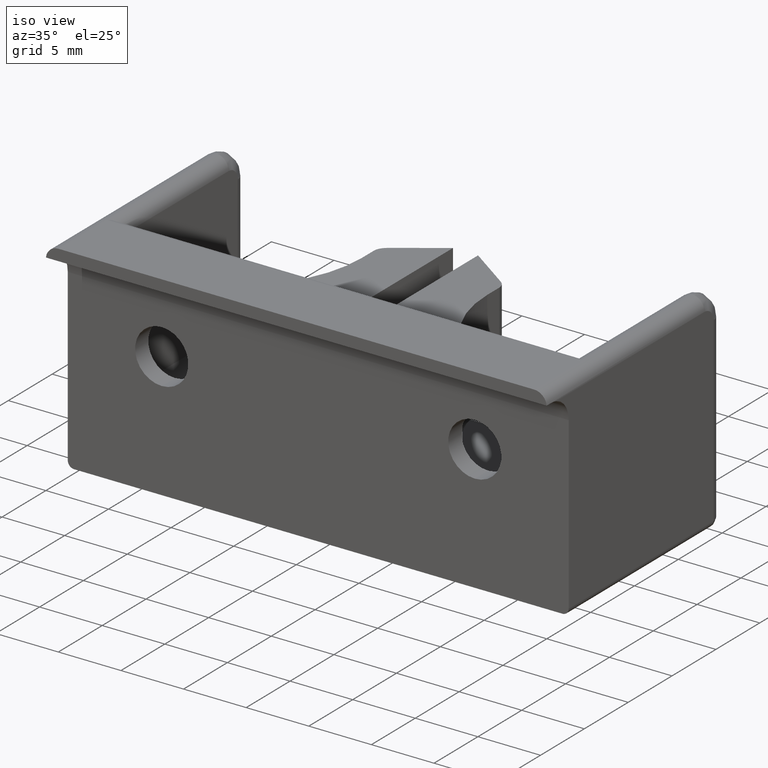
[diagram: clean part render]
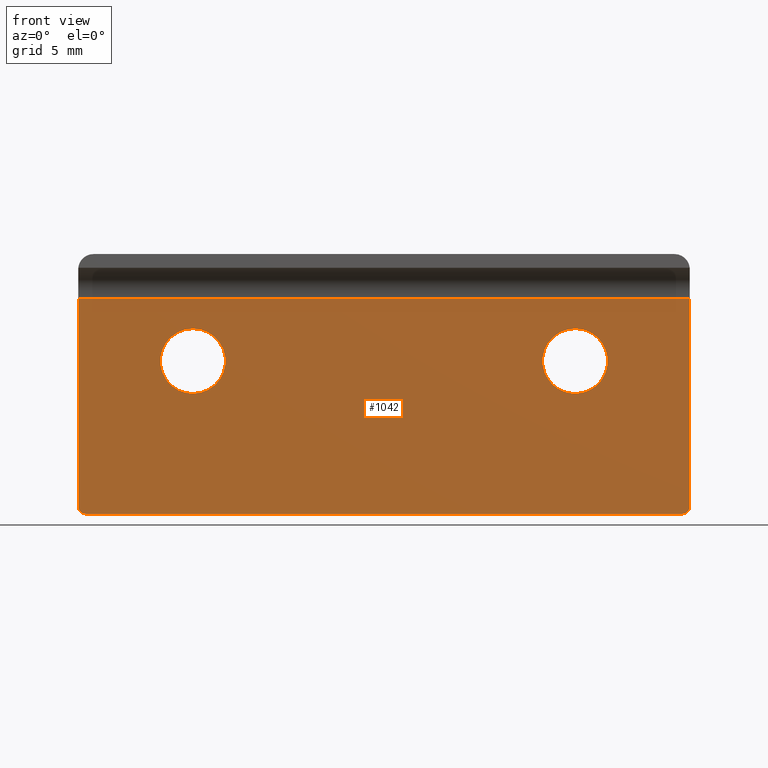
[diagram: tour spotlight — one face highlighted and labeled with its STEP entity id]
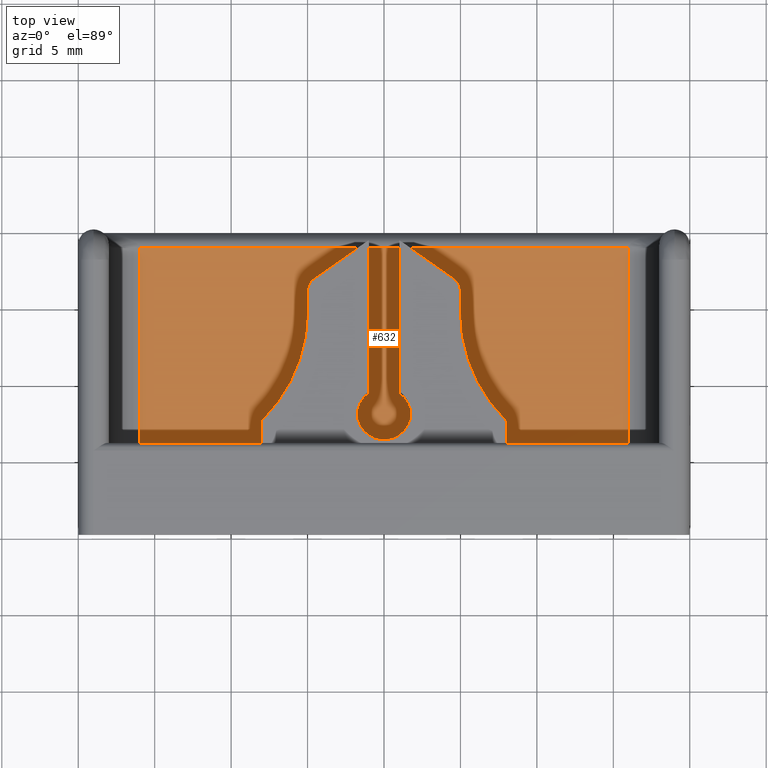
[diagram: tour spotlight — one face highlighted and labeled with its STEP entity id]
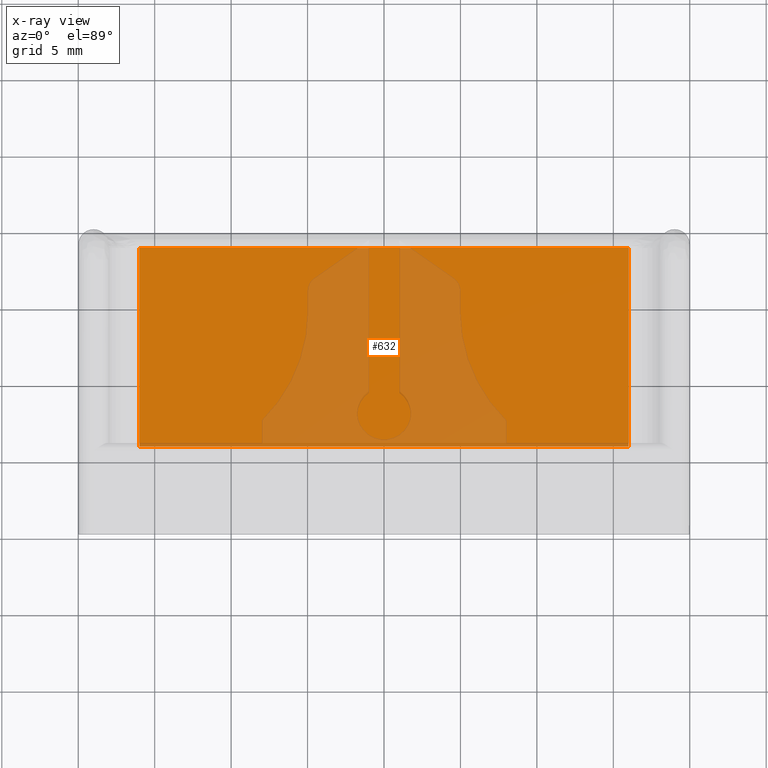
[diagram: x-ray of the same camera — body ghosted, this tour face saturated]
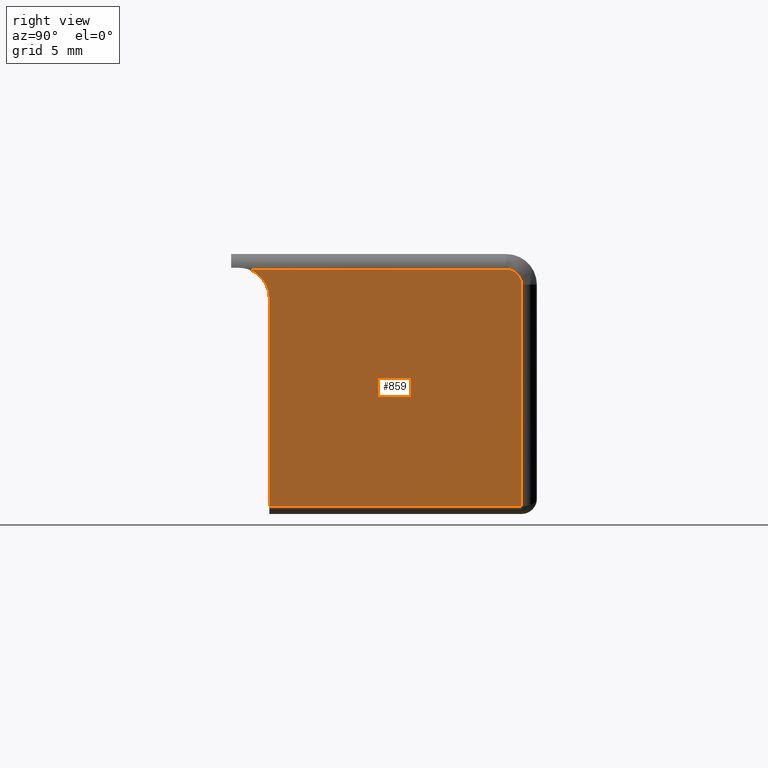
[diagram: tour spotlight — one face highlighted and labeled with its STEP entity id]
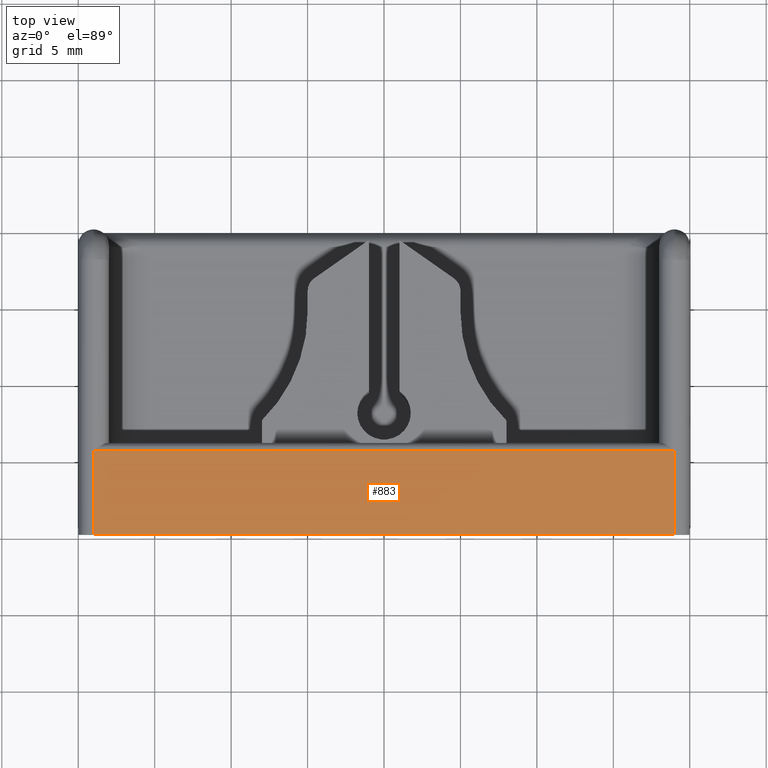
[diagram: tour spotlight — one face highlighted and labeled with its STEP entity id]
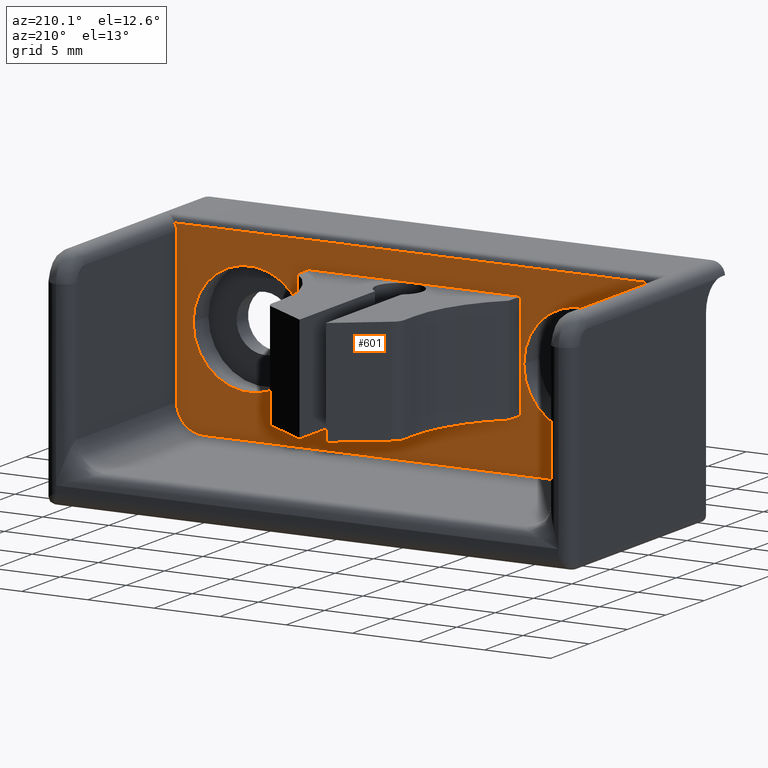
[diagram: tour spotlight — one face highlighted and labeled with its STEP entity id]
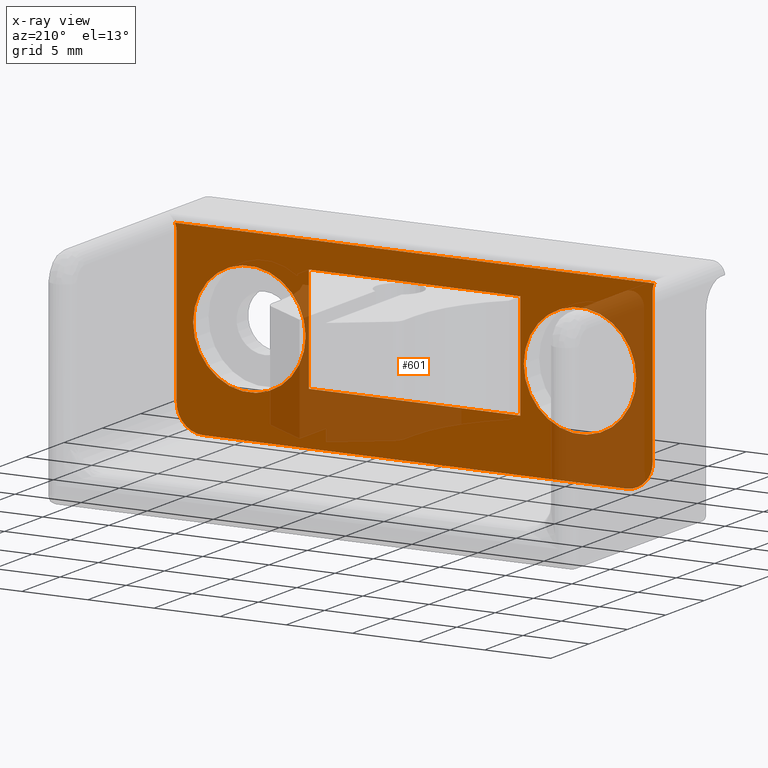
[diagram: x-ray of the same camera — body ghosted, this tour face saturated]
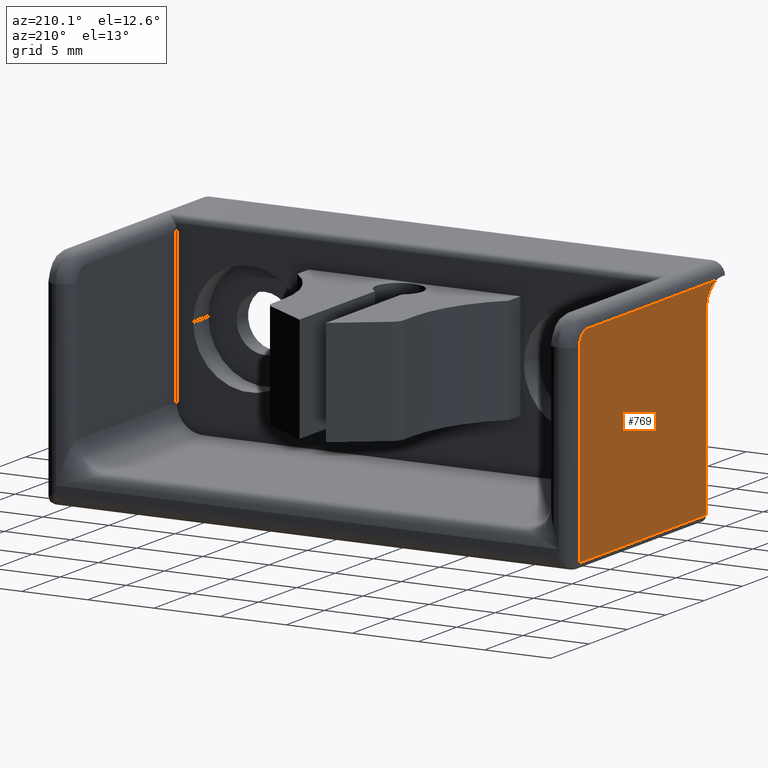
[diagram: tour spotlight — one face highlighted and labeled with its STEP entity id]
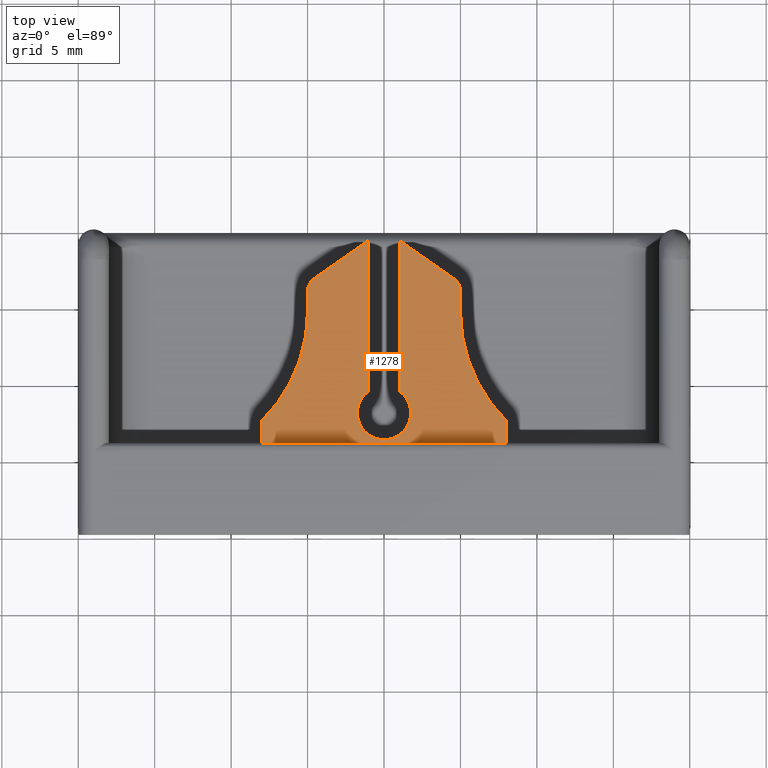
[diagram: tour spotlight — one face highlighted and labeled with its STEP entity id]
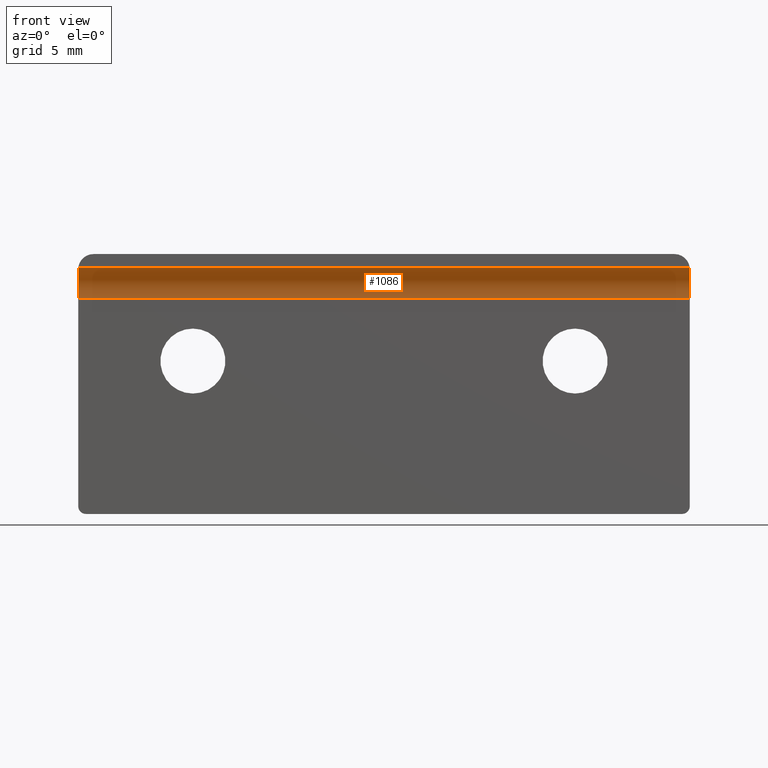
[diagram: tour spotlight — one face highlighted and labeled with its STEP entity id]
A machine part: a face-by-face anatomy tour. The part has 62 B-rep faces; the first image is the clean iso view, then the 8 largest visible faces are spotlighted one at a time (largest first), each with its STEP entity span.

Face 1 — front view, entity #1042. In plain terms, the highlighted planar face has unit normal (0, 1, 0).
Definition (entity closure, byte-faithful):
#244=CARTESIAN_POINT('',(-12.500000000000004,-7.499999999999997,12.125000000000000));
#245=VERTEX_POINT('',#244);
#252=CARTESIAN_POINT('',(-12.500000000000004,-7.499999999999997,7.875000000000003));
#253=VERTEX_POINT('',#252);
#254=CARTESIAN_POINT('',(-12.500000000000004,-7.499999999999997,10.000000000000004));
#255=DIRECTION('',(0.0,-1.0,0.0));
#256=DIRECTION('',(0.0,0.0,-1.0));
#257=AXIS2_PLACEMENT_3D('',#254,#255,#256);
#258=CIRCLE('',#257,2.124999999999999);
#259=EDGE_CURVE('',#245,#253,#258,.T.);
#286=CARTESIAN_POINT('',(12.499999999999996,-7.499999999999997,12.125000000000004));
#287=VERTEX_POINT('',#286);
#294=CARTESIAN_POINT('',(12.499999999999996,-7.499999999999997,7.875000000000000));
#295=VERTEX_POINT('',#294);
#296=CARTESIAN_POINT('',(12.499999999999996,-7.499999999999997,10.000000000000004));
#297=DIRECTION('',(0.0,-1.0,0.0));
#298=DIRECTION('',(0.0,0.0,-1.0));
#299=AXIS2_PLACEMENT_3D('',#296,#297,#298);
#300=CIRCLE('',#299,2.125000000000001);
#301=EDGE_CURVE('',#287,#295,#300,.T.);
#647=CARTESIAN_POINT('',(12.499999999999996,-7.499999999999997,10.000000000000004));
#648=DIRECTION('',(0.0,-1.0,0.0));
#649=DIRECTION('',(0.0,0.0,-1.0));
#650=AXIS2_PLACEMENT_3D('',#647,#648,#649);
#651=CIRCLE('',#650,2.125000000000001);
#652=EDGE_CURVE('',#295,#287,#651,.T.);
#671=CARTESIAN_POINT('',(-12.500000000000004,-7.499999999999997,10.000000000000004));
#672=DIRECTION('',(0.0,-1.0,0.0));
#673=DIRECTION('',(0.0,0.0,-1.0));
#674=AXIS2_PLACEMENT_3D('',#671,#672,#673);
#675=CIRCLE('',#674,2.124999999999999);
#676=EDGE_CURVE('',#253,#245,#675,.T.);
#736=CARTESIAN_POINT('',(-20.000000000000007,-7.500000000000000,0.500000000000004));
#737=VERTEX_POINT('',#736);
#744=CARTESIAN_POINT('',(-20.000000000000007,-7.499999999999997,14.102518950768868));
#745=VERTEX_POINT('',#744);
#746=CARTESIAN_POINT('',(-20.000000000000007,-7.499999999999997,14.102518950768868));
#747=DIRECTION('',(0.0,0.0,-1.0));
#748=VECTOR('',#747,13.602518950768864);
#749=LINE('',#746,#748);
#750=EDGE_CURVE('',#745,#737,#749,.T.);
#807=CARTESIAN_POINT('',(20.000000000000007,-7.499999999999997,14.102518950768868));
#808=VERTEX_POINT('',#807);
#809=CARTESIAN_POINT('',(20.000000000000007,-7.500000000000000,0.500000000000004));
#810=VERTEX_POINT('',#809);
#811=CARTESIAN_POINT('',(20.000000000000007,-7.499999999999997,14.102518950768868));
#812=DIRECTION('',(0.0,0.0,-1.0));
#813=VECTOR('',#812,13.602518950768864);
#814=LINE('',#811,#813);
#815=EDGE_CURVE('',#808,#810,#814,.T.);
#899=CARTESIAN_POINT('',(19.500000000000007,-7.500000000000000,0.0));
#900=VERTEX_POINT('',#899);
#907=CARTESIAN_POINT('',(-19.500000000000007,-7.500000000000000,0.0));
#908=VERTEX_POINT('',#907);
#909=CARTESIAN_POINT('',(19.500000000000007,-7.500000000000000,0.0));
#910=DIRECTION('',(-1.0,0.0,0.0));
#911=VECTOR('',#910,39.000000000000014);
#912=LINE('',#909,#911);
#913=EDGE_CURVE('',#900,#908,#912,.T.);
#1004=CARTESIAN_POINT('',(-22.000000000000007,-7.499999999999997,-0.705125947538443));
#1005=DIRECTION('',(0.0,1.0,0.0));
#1006=DIRECTION('',(0.0,0.0,1.0));
#1007=AXIS2_PLACEMENT_3D('',#1004,#1005,#1006);
#1008=PLANE('',#1007);
#1009=ORIENTED_EDGE('',*,*,#913,.F.);
#1010=CARTESIAN_POINT('',(19.500000000000007,-7.500000000000000,0.500000000000001));
#1011=DIRECTION('',(0.0,-1.0,0.0));
#1012=DIRECTION('',(0.0,0.0,1.0));
#1013=AXIS2_PLACEMENT_3D('',#1010,#1011,#1012);
#1014=CIRCLE('',#1013,0.500000000000000);
#1015=EDGE_CURVE('',#900,#810,#1014,.T.);
#1016=ORIENTED_EDGE('',*,*,#1015,.T.);
#1017=ORIENTED_EDGE('',*,*,#815,.F.);
#1018=CARTESIAN_POINT('',(20.000000000000007,-7.499999999999997,14.102518950768868));
#1019=DIRECTION('',(-1.0,0.0,0.0));
#1020=VECTOR('',#1019,40.000000000000014);
#1021=LINE('',#1018,#1020);
#1022=EDGE_CURVE('',#808,#745,#1021,.T.);
#1023=ORIENTED_EDGE('',*,*,#1022,.T.);
#1024=ORIENTED_EDGE('',*,*,#750,.T.);
#1025=CARTESIAN_POINT('',(-19.500000000000007,-7.500000000000000,0.500000000000001));
#1026=DIRECTION('',(0.0,-1.0,0.0));
#1027=DIRECTION('',(0.0,0.0,1.0));
#1028=AXIS2_PLACEMENT_3D('',#1025,#1026,#1027);
#1029=CIRCLE('',#1028,0.500000000000000);
#1030=EDGE_CURVE('',#737,#908,#1029,.T.);
#1031=ORIENTED_EDGE('',*,*,#1030,.T.);
#1032=EDGE_LOOP('',(#1009,#1016,#1017,#1023,#1024,#1031));
#1033=FACE_OUTER_BOUND('',#1032,.T.);
#1034=ORIENTED_EDGE('',*,*,#676,.F.);
#1035=ORIENTED_EDGE('',*,*,#259,.F.);
#1036=EDGE_LOOP('',(#1034,#1035));
#1037=FACE_BOUND('',#1036,.T.);
#1038=ORIENTED_EDGE('',*,*,#652,.F.);
#1039=ORIENTED_EDGE('',*,*,#301,.F.);
#1040=EDGE_LOOP('',(#1038,#1039));
#1041=FACE_BOUND('',#1040,.T.);
#1042=ADVANCED_FACE('',(#1033,#1037,#1041),#1008,.F.);

Face 2 — top view, entity #632. An x-ray twin of the same camera follows (body ghosted, this face saturated) — the face is partly hidden behind the body. In plain terms, the highlighted planar face has unit normal (0, 0, 1).
Definition (entity closure, byte-faithful):
#513=CARTESIAN_POINT('',(16.0,-3.999999999999997,2.500000000000001));
#514=VERTEX_POINT('',#513);
#522=CARTESIAN_POINT('',(-16.0,-3.999999999999997,2.500000000000001));
#523=VERTEX_POINT('',#522);
#524=CARTESIAN_POINT('',(-16.0,-3.999999999999997,2.500000000000001));
#525=DIRECTION('',(1.0,0.0,0.0));
#526=VECTOR('',#525,32.0);
#527=LINE('',#524,#526);
#528=EDGE_CURVE('',#523,#514,#527,.T.);
#602=CARTESIAN_POINT('',(-17.600000000000001,-4.649999999999999,2.500000000000001));
#603=DIRECTION('',(0.0,0.0,1.0));
#604=DIRECTION('',(1.0,0.0,0.0));
#605=AXIS2_PLACEMENT_3D('',#602,#603,#604);
#606=PLANE('',#605);
#607=ORIENTED_EDGE('',*,*,#528,.T.);
#608=CARTESIAN_POINT('',(16.0,8.999999999999995,2.500000000000001));
#609=VERTEX_POINT('',#608);
#610=CARTESIAN_POINT('',(16.0,-3.999999999999998,2.500000000000001));
#611=DIRECTION('',(0.0,1.0,0.0));
#612=VECTOR('',#611,12.999999999999993);
#613=LINE('',#610,#612);
#614=EDGE_CURVE('',#514,#609,#613,.T.);
#615=ORIENTED_EDGE('',*,*,#614,.T.);
#616=CARTESIAN_POINT('',(-16.0,8.999999999999989,2.500000000000001));
#617=VERTEX_POINT('',#616);
#618=CARTESIAN_POINT('',(16.0,8.999999999999989,2.500000000000001));
#619=DIRECTION('',(-1.0,0.0,0.0));
#620=VECTOR('',#619,32.0);
#621=LINE('',#618,#620);
#622=EDGE_CURVE('',#609,#617,#621,.T.);
#623=ORIENTED_EDGE('',*,*,#622,.T.);
#624=CARTESIAN_POINT('',(-16.0,8.999999999999989,2.500000000000001));
#625=DIRECTION('',(0.0,-1.0,0.0));
#626=VECTOR('',#625,12.999999999999986);
#627=LINE('',#624,#626);
#628=EDGE_CURVE('',#617,#523,#627,.T.);
#629=ORIENTED_EDGE('',*,*,#628,.T.);
#630=EDGE_LOOP('',(#607,#615,#623,#629));
#631=FACE_OUTER_BOUND('',#630,.T.);
#632=ADVANCED_FACE('',(#631),#606,.T.);

Face 3 — right view, entity #859. In plain terms, the highlighted planar face has unit normal (-1, 0, 0).
Definition (entity closure, byte-faithful):
#802=CARTESIAN_POINT('',(20.000000000000007,-9.761282327522366,-0.274999999999999));
#803=DIRECTION('',(-1.0,0.0,0.0));
#804=DIRECTION('',(0.0,0.0,1.0));
#805=AXIS2_PLACEMENT_3D('',#802,#803,#804);
#806=PLANE('',#805);
#807=CARTESIAN_POINT('',(20.000000000000007,-7.499999999999997,14.102518950768868));
#808=VERTEX_POINT('',#807);
#809=CARTESIAN_POINT('',(20.000000000000007,-7.500000000000000,0.500000000000004));
#810=VERTEX_POINT('',#809);
#811=CARTESIAN_POINT('',(20.000000000000007,-7.499999999999997,14.102518950768868));
#812=DIRECTION('',(0.0,0.0,-1.0));
#813=VECTOR('',#812,13.602518950768864);
#814=LINE('',#811,#813);
#815=EDGE_CURVE('',#808,#810,#814,.T.);
#816=ORIENTED_EDGE('',*,*,#815,.T.);
#817=CARTESIAN_POINT('',(20.000000000000007,8.999999999999996,0.500000000000001));
#818=VERTEX_POINT('',#817);
#819=CARTESIAN_POINT('',(20.000000000000007,-7.500000000000000,0.500000000000001));
#820=DIRECTION('',(0.0,1.0,0.0));
#821=VECTOR('',#820,16.499999999999996);
#822=LINE('',#819,#821);
#823=EDGE_CURVE('',#810,#818,#822,.T.);
#824=ORIENTED_EDGE('',*,*,#823,.T.);
#825=CARTESIAN_POINT('',(20.000000000000007,8.999999999999995,15.000000000000005));
#826=VERTEX_POINT('',#825);
#827=CARTESIAN_POINT('',(20.000000000000007,8.999999999999996,0.500000000000000));
#828=DIRECTION('',(0.0,0.0,1.0));
#829=VECTOR('',#828,14.500000000000005);
#830=LINE('',#827,#829);
#831=EDGE_CURVE('',#818,#826,#830,.T.);
#832=ORIENTED_EDGE('',*,*,#831,.T.);
#833=CARTESIAN_POINT('',(20.000000000000007,7.999999999999995,16.0));
#834=VERTEX_POINT('',#833);
#835=CARTESIAN_POINT('',(20.000000000000007,7.999999999999995,15.000000000000005));
#836=DIRECTION('',(1.0,0.0,0.0));
#837=DIRECTION('',(0.0,0.0,1.0));
#838=AXIS2_PLACEMENT_3D('',#835,#836,#837);
#839=CIRCLE('',#838,0.999999999999999);
#840=EDGE_CURVE('',#826,#834,#839,.T.);
#841=ORIENTED_EDGE('',*,*,#840,.T.);
#842=CARTESIAN_POINT('',(20.000000000000007,-8.867887930973682,16.0));
#843=VERTEX_POINT('',#842);
#844=CARTESIAN_POINT('',(20.000000000000007,7.999999999999995,16.0));
#845=DIRECTION('',(0.0,-1.0,0.0));
#846=VECTOR('',#845,16.867887930973676);
#847=LINE('',#844,#846);
#848=EDGE_CURVE('',#834,#843,#847,.T.);
#849=ORIENTED_EDGE('',*,*,#848,.T.);
#850=CARTESIAN_POINT('',(20.000000000000007,-9.499999999999996,14.102518950768868));
#851=DIRECTION('',(-1.0,0.0,0.0));
#852=DIRECTION('',(0.0,0.0,1.0));
#853=AXIS2_PLACEMENT_3D('',#850,#851,#852);
#854=CIRCLE('',#853,2.0);
#855=EDGE_CURVE('',#843,#808,#854,.T.);
#856=ORIENTED_EDGE('',*,*,#855,.T.);
#857=EDGE_LOOP('',(#816,#824,#832,#841,#849,#856));
#858=FACE_OUTER_BOUND('',#857,.T.);
#859=ADVANCED_FACE('',(#858),#806,.F.);

Face 4 — top view, entity #883. In plain terms, the highlighted planar face has unit normal (0, 0, 1).
Definition (entity closure, byte-faithful):
#7=CARTESIAN_POINT('',(-19.000000000000007,-4.499999999999997,17.0));
#8=VERTEX_POINT('',#7);
#9=CARTESIAN_POINT('',(-19.000000000000007,-9.999999999999996,17.0));
#10=VERTEX_POINT('',#9);
#11=CARTESIAN_POINT('',(-19.000000000000007,-4.499999999999997,17.0));
#12=DIRECTION('',(0.0,-1.0,0.0));
#13=VECTOR('',#12,5.499999999999999);
#14=LINE('',#11,#13);
#15=EDGE_CURVE('',#8,#10,#14,.T.);
#775=CARTESIAN_POINT('',(19.000000000000007,-9.999999999999995,17.0));
#776=VERTEX_POINT('',#775);
#777=CARTESIAN_POINT('',(-19.000000000000007,-9.999999999999996,17.0));
#778=DIRECTION('',(1.0,0.0,0.0));
#779=VECTOR('',#778,38.000000000000014);
#780=LINE('',#777,#779);
#781=EDGE_CURVE('',#10,#776,#780,.T.);
#860=CARTESIAN_POINT('',(-20.900000000000009,-10.274999999999995,17.0));
#861=DIRECTION('',(0.0,0.0,1.0));
#862=DIRECTION('',(1.0,0.0,0.0));
#863=AXIS2_PLACEMENT_3D('',#860,#861,#862);
#864=PLANE('',#863);
#865=CARTESIAN_POINT('',(19.000000000000007,-4.499999999999997,17.0));
#866=VERTEX_POINT('',#865);
#867=CARTESIAN_POINT('',(19.000000000000007,-9.999999999999995,17.0));
#868=DIRECTION('',(0.0,1.0,0.0));
#869=VECTOR('',#868,5.499999999999997);
#870=LINE('',#867,#869);
#871=EDGE_CURVE('',#776,#866,#870,.T.);
#872=ORIENTED_EDGE('',*,*,#871,.T.);
#873=CARTESIAN_POINT('',(19.000000000000007,-4.499999999999997,17.0));
#874=DIRECTION('',(-1.0,0.0,0.0));
#875=VECTOR('',#874,38.000000000000014);
#876=LINE('',#873,#875);
#877=EDGE_CURVE('',#866,#8,#876,.T.);
#878=ORIENTED_EDGE('',*,*,#877,.T.);
#879=ORIENTED_EDGE('',*,*,#15,.T.);
#880=ORIENTED_EDGE('',*,*,#781,.T.);
#881=EDGE_LOOP('',(#872,#878,#879,#880));
#882=FACE_OUTER_BOUND('',#881,.T.);
#883=ADVANCED_FACE('',(#882),#864,.T.);

Face 5 — auxiliary view, entity #601. An x-ray twin of the same camera follows (body ghosted, this face saturated) — the face is partly hidden behind the body. In plain terms, the highlighted planar face has unit normal (0, -1, 0).
Definition (entity closure, byte-faithful):
#160=CARTESIAN_POINT('',(16.750000000000000,-3.999999999999997,10.000000000000004));
#161=VERTEX_POINT('',#160);
#168=CARTESIAN_POINT('',(8.249999999999989,-3.999999999999997,10.000000000000004));
#169=VERTEX_POINT('',#168);
#170=CARTESIAN_POINT('',(12.499999999999996,-3.999999999999997,10.000000000000004));
#171=DIRECTION('',(0.0,1.0,0.0));
#172=DIRECTION('',(-1.0,0.0,0.0));
#173=AXIS2_PLACEMENT_3D('',#170,#171,#172);
#174=CIRCLE('',#173,4.250000000000005);
#175=EDGE_CURVE('',#161,#169,#174,.T.);
#202=CARTESIAN_POINT('',(-8.250000000000004,-3.999999999999997,10.000000000000004));
#203=VERTEX_POINT('',#202);
#210=CARTESIAN_POINT('',(-16.750000000000007,-3.999999999999997,10.000000000000004));
#211=VERTEX_POINT('',#210);
#212=CARTESIAN_POINT('',(-12.500000000000004,-3.999999999999997,10.000000000000004));
#213=DIRECTION('',(0.0,1.0,0.0));
#214=DIRECTION('',(-1.0,0.0,0.0));
#215=AXIS2_PLACEMENT_3D('',#212,#213,#214);
#216=CIRCLE('',#215,4.250000000000000);
#217=EDGE_CURVE('',#203,#211,#216,.T.);
#472=CARTESIAN_POINT('',(-19.947372055837121,-3.999999999999997,1.800000000000000));
#473=DIRECTION('',(0.0,-1.0,0.0));
#474=DIRECTION('',(1.0,0.0,0.0));
#475=AXIS2_PLACEMENT_3D('',#472,#473,#474);
#476=PLANE('',#475);
#477=CARTESIAN_POINT('',(-18.000000000000007,-3.999999999999997,15.999999999999995));
#478=VERTEX_POINT('',#477);
#479=CARTESIAN_POINT('',(-18.133974596215563,-3.999999999999997,16.500000000000000));
#480=VERTEX_POINT('',#479);
#481=CARTESIAN_POINT('',(-19.000000000000007,-3.999999999999997,16.0));
#482=DIRECTION('',(0.0,-1.0,0.0));
#483=DIRECTION('',(1.0,0.0,0.0));
#484=AXIS2_PLACEMENT_3D('',#481,#482,#483);
#485=CIRCLE('',#484,1.000000000000001);
#486=EDGE_CURVE('',#478,#480,#485,.T.);
#487=ORIENTED_EDGE('',*,*,#486,.T.);
#488=CARTESIAN_POINT('',(18.133974596215563,-3.999999999999997,16.500000000000000));
#489=VERTEX_POINT('',#488);
#490=CARTESIAN_POINT('',(-18.133974596215559,-3.999999999999997,16.500000000000000));
#491=DIRECTION('',(1.0,0.0,0.0));
#492=VECTOR('',#491,36.267949192431111);
#493=LINE('',#490,#492);
#494=EDGE_CURVE('',#480,#489,#493,.T.);
#495=ORIENTED_EDGE('',*,*,#494,.T.);
#496=CARTESIAN_POINT('',(18.000000000000007,-3.999999999999997,15.999999999999995));
#497=VERTEX_POINT('',#496);
#498=CARTESIAN_POINT('',(19.000000000000007,-3.999999999999997,16.0));
#499=DIRECTION('',(0.0,-1.0,0.0));
#500=DIRECTION('',(1.0,0.0,0.0));
#501=AXIS2_PLACEMENT_3D('',#498,#499,#500);
#502=CIRCLE('',#501,1.000000000000001);
#503=EDGE_CURVE('',#489,#497,#502,.T.);
#504=ORIENTED_EDGE('',*,*,#503,.T.);
#505=CARTESIAN_POINT('',(18.000000000000007,-3.999999999999997,4.500000000000000));
#506=VERTEX_POINT('',#505);
#507=CARTESIAN_POINT('',(18.000000000000007,-3.999999999999997,4.500000000000000));
#508=DIRECTION('',(0.0,0.0,1.0));
#509=VECTOR('',#508,11.499999999999995);
#510=LINE('',#507,#509);
#511=EDGE_CURVE('',#506,#497,#510,.T.);
#512=ORIENTED_EDGE('',*,*,#511,.F.);
#513=CARTESIAN_POINT('',(16.0,-3.999999999999997,2.500000000000001));
#514=VERTEX_POINT('',#513);
#515=CARTESIAN_POINT('',(16.0,-3.999999999999997,4.500000000000002));
#516=DIRECTION('',(0.0,1.0,0.0));
#517=DIRECTION('',(1.0,0.0,0.0));
#518=AXIS2_PLACEMENT_3D('',#515,#516,#517);
#519=CIRCLE('',#518,2.000000000000001);
#520=EDGE_CURVE('',#506,#514,#519,.T.);
#521=ORIENTED_EDGE('',*,*,#520,.T.);
#522=CARTESIAN_POINT('',(-16.0,-3.999999999999997,2.500000000000001));
#523=VERTEX_POINT('',#522);
#524=CARTESIAN_POINT('',(-16.0,-3.999999999999997,2.500000000000001));
#525=DIRECTION('',(1.0,0.0,0.0));
#526=VECTOR('',#525,32.0);
#527=LINE('',#524,#526);
#528=EDGE_CURVE('',#523,#514,#527,.T.);
#529=ORIENTED_EDGE('',*,*,#528,.F.);
#530=CARTESIAN_POINT('',(-18.000000000000007,-3.999999999999997,4.500000000000000));
#531=VERTEX_POINT('',#530);
#532=CARTESIAN_POINT('',(-16.0,-3.999999999999997,4.500000000000002));
#533=DIRECTION('',(0.0,1.0,0.0));
#534=DIRECTION('',(1.0,0.0,0.0));
#535=AXIS2_PLACEMENT_3D('',#532,#533,#534);
#536=CIRCLE('',#535,2.0);
#537=EDGE_CURVE('',#523,#531,#536,.T.);
#538=ORIENTED_EDGE('',*,*,#537,.T.);
#539=CARTESIAN_POINT('',(-18.000000000000007,-3.999999999999997,4.500000000000000));
#540=DIRECTION('',(0.0,0.0,1.0));
#541=VECTOR('',#540,11.499999999999995);
#542=LINE('',#539,#541);
#543=EDGE_CURVE('',#531,#478,#542,.T.);
#544=ORIENTED_EDGE('',*,*,#543,.T.);
#545=EDGE_LOOP('',(#487,#495,#504,#512,#521,#529,#538,#544));
#546=FACE_OUTER_BOUND('',#545,.T.);
#547=CARTESIAN_POINT('',(-12.500000000000004,-3.999999999999997,10.000000000000004));
#548=DIRECTION('',(0.0,1.0,0.0));
#549=DIRECTION('',(-1.0,0.0,0.0));
#550=AXIS2_PLACEMENT_3D('',#547,#548,#549);
#551=CIRCLE('',#550,4.250000000000000);
#552=EDGE_CURVE('',#211,#203,#551,.T.);
#553=ORIENTED_EDGE('',*,*,#552,.F.);
#554=ORIENTED_EDGE('',*,*,#217,.F.);
#555=EDGE_LOOP('',(#553,#554));
#556=FACE_BOUND('',#555,.T.);
#557=CARTESIAN_POINT('',(12.499999999999996,-3.999999999999997,10.000000000000004));
#558=DIRECTION('',(0.0,1.0,0.0));
#559=DIRECTION('',(-1.0,0.0,0.0));
#560=AXIS2_PLACEMENT_3D('',#557,#558,#559);
#561=CIRCLE('',#560,4.250000000000005);
#562=EDGE_CURVE('',#169,#161,#561,.T.);
#563=ORIENTED_EDGE('',*,*,#562,.F.);
#564=ORIENTED_EDGE('',*,*,#175,.F.);
#565=EDGE_LOOP('',(#563,#564));
#566=FACE_BOUND('',#565,.T.);
#567=CARTESIAN_POINT('',(-8.000000000000004,-3.999999999999997,14.500000000000000));
#568=VERTEX_POINT('',#567);
#569=CARTESIAN_POINT('',(-8.000000000000004,-3.999999999999997,6.500000000000003));
#570=VERTEX_POINT('',#569);
#571=CARTESIAN_POINT('',(-8.000000000000004,-3.999999999999997,14.500000000000000));
#572=DIRECTION('',(0.0,0.0,-1.0));
#573=VECTOR('',#572,7.999999999999996);
#574=LINE('',#571,#573);
#575=EDGE_CURVE('',#568,#570,#574,.T.);
#576=ORIENTED_EDGE('',*,*,#575,.T.);
#577=CARTESIAN_POINT('',(8.000000000000004,-3.999999999999997,6.500000000000003));
#578=VERTEX_POINT('',#577);
#579=CARTESIAN_POINT('',(-8.000000000000004,-3.999999999999997,6.500000000000003));
#580=DIRECTION('',(1.0,0.0,0.0));
#581=VECTOR('',#580,16.000000000000007);
#582=LINE('',#579,#581);
#583=EDGE_CURVE('',#570,#578,#582,.T.);
#584=ORIENTED_EDGE('',*,*,#583,.T.);
#585=CARTESIAN_POINT('',(8.000000000000004,-3.999999999999997,14.500000000000000));
#586=VERTEX_POINT('',#585);
#587=CARTESIAN_POINT('',(8.000000000000004,-3.999999999999997,14.500000000000000));
#588=DIRECTION('',(0.0,0.0,-1.0));
#589=VECTOR('',#588,7.999999999999996);
#590=LINE('',#587,#589);
#591=EDGE_CURVE('',#586,#578,#590,.T.);
#592=ORIENTED_EDGE('',*,*,#591,.F.);
#593=CARTESIAN_POINT('',(-8.000000000000004,-3.999999999999997,14.500000000000000));
#594=DIRECTION('',(1.0,0.0,0.0));
#595=VECTOR('',#594,16.000000000000007);
#596=LINE('',#593,#595);
#597=EDGE_CURVE('',#568,#586,#596,.T.);
#598=ORIENTED_EDGE('',*,*,#597,.F.);
#599=EDGE_LOOP('',(#576,#584,#592,#598));
#600=FACE_BOUND('',#599,.T.);
#601=ADVANCED_FACE('',(#546,#556,#566,#600),#476,.F.);

Face 6 — auxiliary view, entity #769. In plain terms, the highlighted planar face has unit normal (1, 0, 0).
Definition (entity closure, byte-faithful):
#25=CARTESIAN_POINT('',(-20.000000000000007,7.999999999999989,16.0));
#26=VERTEX_POINT('',#25);
#34=CARTESIAN_POINT('',(-20.000000000000007,-8.867887930973682,16.0));
#35=VERTEX_POINT('',#34);
#36=CARTESIAN_POINT('',(-20.000000000000007,-8.867887930973680,16.0));
#37=DIRECTION('',(0.0,1.0,0.0));
#38=VECTOR('',#37,16.867887930973669);
#39=LINE('',#36,#38);
#40=EDGE_CURVE('',#35,#26,#39,.T.);
#721=CARTESIAN_POINT('',(-20.000000000000007,-9.761282327522366,16.775000000000002));
#722=DIRECTION('',(1.0,0.0,0.0));
#723=DIRECTION('',(0.0,0.0,-1.0));
#724=AXIS2_PLACEMENT_3D('',#721,#722,#723);
#725=PLANE('',#724);
#726=CARTESIAN_POINT('',(-20.000000000000007,8.999999999999989,15.000000000000005));
#727=VERTEX_POINT('',#726);
#728=CARTESIAN_POINT('',(-20.000000000000007,8.999999999999989,0.500000000000001));
#729=VERTEX_POINT('',#728);
#730=CARTESIAN_POINT('',(-20.000000000000007,8.999999999999989,15.000000000000005));
#731=DIRECTION('',(0.0,0.0,-1.0));
#732=VECTOR('',#731,14.500000000000005);
#733=LINE('',#730,#732);
#734=EDGE_CURVE('',#727,#729,#733,.T.);
#735=ORIENTED_EDGE('',*,*,#734,.T.);
#736=CARTESIAN_POINT('',(-20.000000000000007,-7.500000000000000,0.500000000000004));
#737=VERTEX_POINT('',#736);
#738=CARTESIAN_POINT('',(-20.000000000000007,8.999999999999989,0.500000000000001));
#739=DIRECTION('',(0.0,-1.0,0.0));
#740=VECTOR('',#739,16.499999999999989);
#741=LINE('',#738,#740);
#742=EDGE_CURVE('',#729,#737,#741,.T.);
#743=ORIENTED_EDGE('',*,*,#742,.T.);
#744=CARTESIAN_POINT('',(-20.000000000000007,-7.499999999999997,14.102518950768868));
#745=VERTEX_POINT('',#744);
#746=CARTESIAN_POINT('',(-20.000000000000007,-7.499999999999997,14.102518950768868));
#747=DIRECTION('',(0.0,0.0,-1.0));
#748=VECTOR('',#747,13.602518950768864);
#749=LINE('',#746,#748);
#750=EDGE_CURVE('',#745,#737,#749,.T.);
#751=ORIENTED_EDGE('',*,*,#750,.F.);
#752=CARTESIAN_POINT('',(-20.000000000000007,-9.499999999999996,14.102518950768868));
#753=DIRECTION('',(1.0,0.0,0.0));
#754=DIRECTION('',(0.0,0.0,-1.0));
#755=AXIS2_PLACEMENT_3D('',#752,#753,#754);
#756=CIRCLE('',#755,2.0);
#757=EDGE_CURVE('',#745,#35,#756,.T.);
#758=ORIENTED_EDGE('',*,*,#757,.T.);
#759=ORIENTED_EDGE('',*,*,#40,.T.);
#760=CARTESIAN_POINT('',(-20.000000000000007,7.999999999999989,15.000000000000005));
#761=DIRECTION('',(-1.0,0.0,0.0));
#762=DIRECTION('',(0.0,0.0,-1.0));
#763=AXIS2_PLACEMENT_3D('',#760,#761,#762);
#764=CIRCLE('',#763,0.999999999999999);
#765=EDGE_CURVE('',#26,#727,#764,.T.);
#766=ORIENTED_EDGE('',*,*,#765,.T.);
#767=EDGE_LOOP('',(#735,#743,#751,#758,#759,#766));
#768=FACE_OUTER_BOUND('',#767,.T.);
#769=ADVANCED_FACE('',(#768),#725,.F.);

Face 7 — top view, entity #1278. In plain terms, the highlighted planar face has unit normal (0, 0, 1).
Definition (entity closure, byte-faithful):
#85=CARTESIAN_POINT('',(-1.750000000000002,-1.999999999999996,14.500000000000000));
#86=VERTEX_POINT('',#85);
#93=CARTESIAN_POINT('',(1.749999999999998,-1.999999999999996,14.500000000000000));
#94=VERTEX_POINT('',#93);
#95=CARTESIAN_POINT('',(-1.734723E-015,-1.999999999999996,14.500000000000000));
#96=DIRECTION('',(0.0,0.0,1.0));
#97=DIRECTION('',(1.0,0.0,0.0));
#98=AXIS2_PLACEMENT_3D('',#95,#96,#97);
#99=CIRCLE('',#98,1.750000000000000);
#100=EDGE_CURVE('',#86,#94,#99,.T.);
#126=CARTESIAN_POINT('',(0.999999999999998,-0.563859338365486,14.500000000000000));
#127=VERTEX_POINT('',#126);
#128=CARTESIAN_POINT('',(-1.734723E-015,-1.999999999999996,14.500000000000000));
#129=DIRECTION('',(0.0,0.0,1.0));
#130=DIRECTION('',(1.0,0.0,0.0));
#131=AXIS2_PLACEMENT_3D('',#128,#129,#130);
#132=CIRCLE('',#131,1.750000000000000);
#133=EDGE_CURVE('',#94,#127,#132,.T.);
#327=CARTESIAN_POINT('',(5.000000000000002,5.979344438426631,14.500000000000000));
#328=VERTEX_POINT('',#327);
#335=CARTESIAN_POINT('',(5.000000000000002,4.641428428542850,14.500000000000000));
#336=VERTEX_POINT('',#335);
#337=CARTESIAN_POINT('',(5.000000000000002,4.641428428542850,14.500000000000000));
#338=DIRECTION('',(0.0,1.0,0.0));
#339=VECTOR('',#338,1.337916009883781);
#340=LINE('',#337,#339);
#341=EDGE_CURVE('',#336,#328,#340,.T.);
#357=CARTESIAN_POINT('',(-5.000000000000002,5.979344438426631,14.500000000000000));
#358=VERTEX_POINT('',#357);
#359=CARTESIAN_POINT('',(-5.000000000000002,4.641428428542850,14.500000000000000));
#360=VERTEX_POINT('',#359);
#361=CARTESIAN_POINT('',(-5.000000000000002,5.979344438426631,14.500000000000000));
#362=DIRECTION('',(0.0,-1.0,0.0));
#363=VECTOR('',#362,1.337916009883781);
#364=LINE('',#361,#363);
#365=EDGE_CURVE('',#358,#360,#364,.T.);
#407=CARTESIAN_POINT('',(-4.573462344363330,6.798576358945671,14.500000000000000));
#408=VERTEX_POINT('',#407);
#415=CARTESIAN_POINT('',(-1.000000000000000,9.299999999999997,14.500000000000000));
#416=VERTEX_POINT('',#415);
#417=CARTESIAN_POINT('',(-0.999999999999999,9.299999999999997,14.500000000000000));
#418=DIRECTION('',(-0.819231920519041,-0.573462344363327,0.0));
#419=VECTOR('',#418,4.361966684720112);
#420=LINE('',#417,#419);
#421=EDGE_CURVE('',#416,#408,#420,.T.);
#437=CARTESIAN_POINT('',(4.573462344363330,6.798576358945671,14.500000000000000));
#438=VERTEX_POINT('',#437);
#439=CARTESIAN_POINT('',(0.999999999999999,9.299999999999997,14.500000000000000));
#440=VERTEX_POINT('',#439);
#441=CARTESIAN_POINT('',(4.573462344363332,6.798576358945671,14.500000000000000));
#442=DIRECTION('',(-0.819231920519041,0.573462344363327,0.0));
#443=VECTOR('',#442,4.361966684720112);
#444=LINE('',#441,#443);
#445=EDGE_CURVE('',#438,#440,#444,.T.);
#567=CARTESIAN_POINT('',(-8.000000000000004,-3.999999999999997,14.500000000000000));
#568=VERTEX_POINT('',#567);
#585=CARTESIAN_POINT('',(8.000000000000004,-3.999999999999997,14.500000000000000));
#586=VERTEX_POINT('',#585);
#593=CARTESIAN_POINT('',(-8.000000000000004,-3.999999999999997,14.500000000000000));
#594=DIRECTION('',(1.0,0.0,0.0));
#595=VECTOR('',#594,16.000000000000007);
#596=LINE('',#593,#595);
#597=EDGE_CURVE('',#568,#586,#596,.T.);
#1156=CARTESIAN_POINT('',(-8.000000000000004,-2.499999999999997,14.500000000000000));
#1157=VERTEX_POINT('',#1156);
#1173=CARTESIAN_POINT('',(-8.000000000000004,-2.499999999999997,14.500000000000000));
#1174=DIRECTION('',(0.0,-1.0,0.0));
#1175=VECTOR('',#1174,1.500000000000000);
#1176=LINE('',#1173,#1175);
#1177=EDGE_CURVE('',#1157,#568,#1176,.T.);
#1196=CARTESIAN_POINT('',(8.000000000000004,-2.499999999999997,14.500000000000000));
#1197=VERTEX_POINT('',#1196);
#1204=CARTESIAN_POINT('',(8.000000000000004,-3.999999999999997,14.500000000000000));
#1205=DIRECTION('',(0.0,1.0,0.0));
#1206=VECTOR('',#1205,1.500000000000000);
#1207=LINE('',#1204,#1206);
#1208=EDGE_CURVE('',#586,#1197,#1207,.T.);
#1213=CARTESIAN_POINT('',(-8.800000000000004,-4.664999999999997,14.500000000000000));
#1214=DIRECTION('',(0.0,0.0,1.0));
#1215=DIRECTION('',(1.0,0.0,0.0));
#1216=AXIS2_PLACEMENT_3D('',#1213,#1214,#1215);
#1217=PLANE('',#1216);
#1218=ORIENTED_EDGE('',*,*,#341,.T.);
#1219=CARTESIAN_POINT('',(4.000000000000002,5.979344438426631,14.500000000000000));
#1220=DIRECTION('',(0.0,0.0,1.0));
#1221=DIRECTION('',(1.0,0.0,0.0));
#1222=AXIS2_PLACEMENT_3D('',#1219,#1220,#1221);
#1223=CIRCLE('',#1222,1.0);
#1224=EDGE_CURVE('',#328,#438,#1223,.T.);
#1225=ORIENTED_EDGE('',*,*,#1224,.T.);
#1226=ORIENTED_EDGE('',*,*,#445,.T.);
#1227=CARTESIAN_POINT('',(0.999999999999998,-0.563859338365486,14.500000000000000));
#1228=DIRECTION('',(0.0,1.0,0.0));
#1229=VECTOR('',#1228,9.863859338365483);
#1230=LINE('',#1227,#1229);
#1231=EDGE_CURVE('',#127,#440,#1230,.T.);
#1232=ORIENTED_EDGE('',*,*,#1231,.F.);
#1233=ORIENTED_EDGE('',*,*,#133,.F.);
#1234=ORIENTED_EDGE('',*,*,#100,.F.);
#1235=CARTESIAN_POINT('',(-0.999999999999998,-0.563859338365486,14.500000000000000));
#1236=VERTEX_POINT('',#1235);
#1237=CARTESIAN_POINT('',(-1.734723E-015,-1.999999999999996,14.500000000000000));
#1238=DIRECTION('',(0.0,0.0,1.0));
#1239=DIRECTION('',(1.0,0.0,0.0));
#1240=AXIS2_PLACEMENT_3D('',#1237,#1238,#1239);
#1241=CIRCLE('',#1240,1.750000000000000);
#1242=EDGE_CURVE('',#1236,#86,#1241,.T.);
#1243=ORIENTED_EDGE('',*,*,#1242,.F.);
#1244=CARTESIAN_POINT('',(-1.000000000000000,9.299999999999997,14.500000000000000));
#1245=DIRECTION('',(0.0,-1.0,0.0));
#1246=VECTOR('',#1245,9.863859338365483);
#1247=LINE('',#1244,#1246);
#1248=EDGE_CURVE('',#416,#1236,#1247,.T.);
#1249=ORIENTED_EDGE('',*,*,#1248,.F.);
#1250=ORIENTED_EDGE('',*,*,#421,.T.);
#1251=CARTESIAN_POINT('',(-4.000000000000002,5.979344438426631,14.500000000000000));
#1252=DIRECTION('',(0.0,0.0,1.0));
#1253=DIRECTION('',(1.0,0.0,0.0));
#1254=AXIS2_PLACEMENT_3D('',#1251,#1252,#1253);
#1255=CIRCLE('',#1254,1.0);
#1256=EDGE_CURVE('',#408,#358,#1255,.T.);
#1257=ORIENTED_EDGE('',*,*,#1256,.T.);
#1258=ORIENTED_EDGE('',*,*,#365,.T.);
#1259=CARTESIAN_POINT('',(-15.000000000000005,4.641428428542850,14.500000000000000));
#1260=DIRECTION('',(0.0,0.0,-1.0));
#1261=DIRECTION('',(1.0,0.0,0.0));
#1262=AXIS2_PLACEMENT_3D('',#1259,#1260,#1261);
#1263=CIRCLE('',#1262,10.0);
#1264=EDGE_CURVE('',#360,#1157,#1263,.T.);
#1265=ORIENTED_EDGE('',*,*,#1264,.T.);
#1266=ORIENTED_EDGE('',*,*,#1177,.T.);
#1267=ORIENTED_EDGE('',*,*,#597,.T.);
#1268=ORIENTED_EDGE('',*,*,#1208,.T.);
#1269=CARTESIAN_POINT('',(15.000000000000005,4.641428428542850,14.500000000000000));
#1270=DIRECTION('',(0.0,0.0,-1.0));
#1271=DIRECTION('',(1.0,0.0,0.0));
#1272=AXIS2_PLACEMENT_3D('',#1269,#1270,#1271);
#1273=CIRCLE('',#1272,9.999999999999996);
#1274=EDGE_CURVE('',#1197,#336,#1273,.T.);
#1275=ORIENTED_EDGE('',*,*,#1274,.T.);
#1276=EDGE_LOOP('',(#1218,#1225,#1226,#1232,#1233,#1234,#1243,#1249,#1250,#1257,#1258,#1265,#1266,#1267,#1268,#1275));
#1277=FACE_OUTER_BOUND('',#1276,.T.);
#1278=ADVANCED_FACE('',(#1277),#1217,.T.);

Face 8 — front view, entity #1086. In plain terms, the highlighted cylindrical surface (edge-blend (fillet) strip) has radius 2 mm, axis along (1, 0, 0).
Definition (entity closure, byte-faithful):
#34=CARTESIAN_POINT('',(-20.000000000000007,-8.867887930973682,16.0));
#35=VERTEX_POINT('',#34);
#42=CARTESIAN_POINT('',(-19.994731051457251,-9.499999999999996,16.102518950768868));
#43=VERTEX_POINT('',#42);
#44=CARTESIAN_POINT('',(-19.994731051457251,-9.499999999999996,16.102518950768868));
#45=CARTESIAN_POINT('',(-19.994731051457251,-9.283738999781086,16.102518950768868));
#46=CARTESIAN_POINT('',(-20.000000000000007,-9.073063505775256,16.068350594149038));
#47=CARTESIAN_POINT('',(-20.000000000000007,-8.867887930973682,16.0));
#48=B_SPLINE_CURVE_WITH_KNOTS('',3,(#44,#45,#46,#47),.UNSPECIFIED.,.F.,.U.,(4,4),(0.0,0.000640393289233),.UNSPECIFIED.);
#49=EDGE_CURVE('',#43,#35,#48,.T.);
#744=CARTESIAN_POINT('',(-20.000000000000007,-7.499999999999997,14.102518950768868));
#745=VERTEX_POINT('',#744);
#752=CARTESIAN_POINT('',(-20.000000000000007,-9.499999999999996,14.102518950768868));
#753=DIRECTION('',(1.0,0.0,0.0));
#754=DIRECTION('',(0.0,0.0,-1.0));
#755=AXIS2_PLACEMENT_3D('',#752,#753,#754);
#756=CIRCLE('',#755,2.0);
#757=EDGE_CURVE('',#745,#35,#756,.T.);
#807=CARTESIAN_POINT('',(20.000000000000007,-7.499999999999997,14.102518950768868));
#808=VERTEX_POINT('',#807);
#842=CARTESIAN_POINT('',(20.000000000000007,-8.867887930973682,16.0));
#843=VERTEX_POINT('',#842);
#850=CARTESIAN_POINT('',(20.000000000000007,-9.499999999999996,14.102518950768868));
#851=DIRECTION('',(-1.0,0.0,0.0));
#852=DIRECTION('',(0.0,0.0,1.0));
#853=AXIS2_PLACEMENT_3D('',#850,#851,#852);
#854=CIRCLE('',#853,2.0);
#855=EDGE_CURVE('',#843,#808,#854,.T.);
#1018=CARTESIAN_POINT('',(20.000000000000007,-7.499999999999997,14.102518950768868));
#1019=DIRECTION('',(-1.0,0.0,0.0));
#1020=VECTOR('',#1019,40.000000000000014);
#1021=LINE('',#1018,#1020);
#1022=EDGE_CURVE('',#808,#745,#1021,.T.);
#1050=CARTESIAN_POINT('',(19.994731051457251,-9.499999999999996,16.102518950768868));
#1051=VERTEX_POINT('',#1050);
#1052=CARTESIAN_POINT('',(-19.994731051457251,-9.499999999999996,16.102518950768868));
#1053=DIRECTION('',(1.0,0.0,0.0));
#1054=VECTOR('',#1053,39.989462102914501);
#1055=LINE('',#1052,#1054);
#1056=EDGE_CURVE('',#43,#1051,#1055,.T.);
#1067=CARTESIAN_POINT('',(-20.000000019786953,-9.499999999999996,14.102518950768868));
#1068=DIRECTION('',(1.0,0.0,0.0));
#1069=DIRECTION('',(0.0,0.0,-1.0));
#1070=AXIS2_PLACEMENT_3D('',#1067,#1068,#1069);
#1071=CYLINDRICAL_SURFACE('',#1070,2.0);
#1072=ORIENTED_EDGE('',*,*,#1056,.F.);
#1073=ORIENTED_EDGE('',*,*,#49,.T.);
#1074=ORIENTED_EDGE('',*,*,#757,.F.);
#1075=ORIENTED_EDGE('',*,*,#1022,.F.);
#1076=ORIENTED_EDGE('',*,*,#855,.F.);
#1077=CARTESIAN_POINT('',(20.000000000000007,-8.867887930973682,16.0));
#1078=CARTESIAN_POINT('',(20.000000000000007,-9.073063505775256,16.068350594149038));
#1079=CARTESIAN_POINT('',(19.994731051457251,-9.283738999781086,16.102518950768868));
#1080=CARTESIAN_POINT('',(19.994731051457251,-9.499999999999996,16.102518950768868));
#1081=B_SPLINE_CURVE_WITH_KNOTS('',3,(#1077,#1078,#1079,#1080),.UNSPECIFIED.,.F.,.U.,(4,4),(0.0,0.000640393289233),.UNSPECIFIED.);
#1082=EDGE_CURVE('',#843,#1051,#1081,.T.);
#1083=ORIENTED_EDGE('',*,*,#1082,.T.);
#1084=EDGE_LOOP('',(#1072,#1073,#1074,#1075,#1076,#1083));
#1085=FACE_OUTER_BOUND('',#1084,.T.);
#1086=ADVANCED_FACE('',(#1085),#1071,.F.);